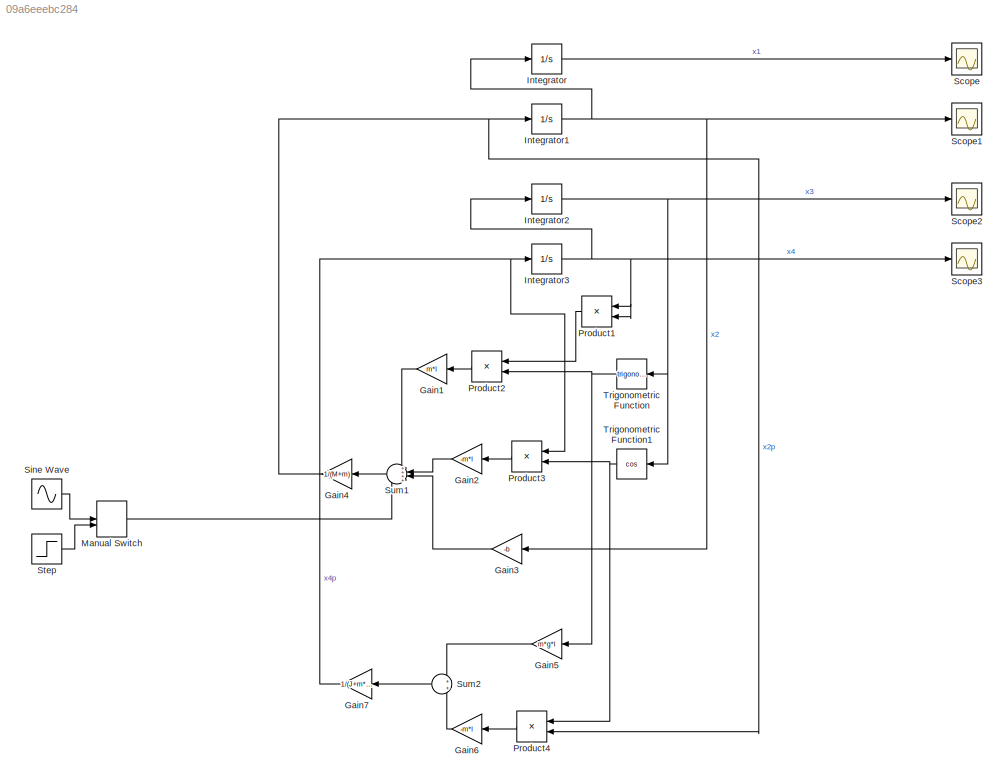
MODEL slx_09a6eeebc284
KIND model
CONFIG AbsTol = auto
CONFIG EnableMultiTasking = off
CONFIG FixedStep = auto
CONFIG MaxStep = auto
CONFIG MinStep = auto
CONFIG RelTol = 1e-3
CONFIG SampleTimeConstraint = Unconstrained
CONFIG SolverName = VariableStepAuto
CONFIG StartTime = 0.0
CONFIG StopTime = 10.0
BLOCK [Gain] Gain1
  Gain = m*l
  NameLocation = top
BLOCK [Gain] Gain2
  Gain = -m*l
  NameLocation = top
BLOCK [Gain] Gain3
  Gain = -b
  NameLocation = top
BLOCK [Gain] Gain4
  Gain = 1/(M+m)
  NameLocation = top
BLOCK [Gain] Gain5
  Gain = m*g*l
  NameLocation = top
BLOCK [Gain] Gain6
  Gain = -m*l
  NameLocation = top
BLOCK [Gain] Gain7
  Gain = 1/(J+m*l*l)
  NameLocation = top
BLOCK [Integrator] Integrator
  NameLocation = top
  Ports = [1, 1]
BLOCK [Integrator] Integrator1
  Ports = [1, 1]
BLOCK [Integrator] Integrator2
  NameLocation = top
  Ports = [1, 1]
BLOCK [Integrator] Integrator3
  Ports = [1, 1]
BLOCK [ManualSwitch] Manual Switch
  CurrentSetting = 0
BLOCK [Product] Product1
  NameLocation = top
  Ports = [2, 1]
BLOCK [Product] Product2
  NameLocation = top
  Ports = [2, 1]
BLOCK [Product] Product3
  NameLocation = top
  Ports = [2, 1]
BLOCK [Product] Product4
  NameLocation = top
  Ports = [2, 1]
BLOCK [Scope] Scope
  Floating = off
  NumInputPorts = 1
  Ports = [1]
  ScopeSpecificationString = Simulink.scopes.TimeScopeBlockCfg('CurrentConfiguration', extmgr.ConfigurationSet(extmgr.Configuration('Core','General UI',true),extmgr.Configuration('Core','Source UI',true),extmgr.Configuration('Sources','WiredSimulink',true),extmgr.Configuration('Visuals','Time Domain',true,'SerializedDisplays',{struct('MinYLimReal','-0.01398','MaxYLimReal','0.12585','YLabelReal','','MinYLimMag','0.00000','MaxY...<+1351ch>
BLOCK [Scope] Scope1
  Floating = off
  NumInputPorts = 1
  Ports = [1]
  ScopeSpecificationString = Simulink.scopes.TimeScopeBlockCfg('CurrentConfiguration', extmgr.ConfigurationSet(extmgr.Configuration('Core','General UI',true),extmgr.Configuration('Core','Source UI',true),extmgr.Configuration('Sources','WiredSimulink',true,'DataLoggingVariableName','ScopeData1'),extmgr.Configuration('Visuals','Time Domain',true,'SerializedDisplays',{struct('MinYLimReal','-0.11552','MaxYLimReal','0.14103','YLab...<+1390ch>
BLOCK [Scope] Scope2
  Floating = off
  NumInputPorts = 1
  Ports = [1]
  ScopeSpecificationString = Simulink.scopes.TimeScopeBlockCfg('CurrentConfiguration', extmgr.ConfigurationSet(extmgr.Configuration('Core','General UI',true),extmgr.Configuration('Core','Source UI',true),extmgr.Configuration('Sources','WiredSimulink',true,'DataLoggingVariableName','ScopeData2'),extmgr.Configuration('Visuals','Time Domain',true,'SerializedDisplays',{struct('MinYLimReal','-6.96245','MaxYLimReal','0.77361','YLab...<+1389ch>
BLOCK [Scope] Scope3
  Floating = off
  NumInputPorts = 1
  Ports = [1]
  ScopeSpecificationString = Simulink.scopes.TimeScopeBlockCfg('CurrentConfiguration', extmgr.ConfigurationSet(extmgr.Configuration('Core','General UI',true),extmgr.Configuration('Core','Source UI',true),extmgr.Configuration('Sources','WiredSimulink',true,'DataLoggingVariableName','ScopeData3'),extmgr.Configuration('Visuals','Time Domain',true,'SerializedDisplays',{struct('MinYLimReal','-10.36369','MaxYLimReal','10.35442','YL...<+1367ch>
BLOCK [Sin] Sine Wave
  Amplitude = 0.1
  Frequency = 2000*pi
  Ports = [0, 1]
  SampleTime = 0
BLOCK [Step] Step
  After = 0.01
  SampleTime = 0
BLOCK [Sum] Sum1
  Inputs = ++++
  NameLocation = top
  Ports = [4, 1]
BLOCK [Sum] Sum2
  NameLocation = top
  Ports = [2, 1]
BLOCK [Trigonometry] Trigonometric Function
  NameLocation = top
  Ports = [1, 1]
BLOCK [Trigonometry] Trigonometric Function1
  NameLocation = top
  Operator = cos
  Ports = [1, 1]
LINE Gain1:1 -> Sum1:1
LINE Gain2:1 -> Sum1:2
LINE Gain3:1 -> Sum1:3
NET Gain4:1 -> Integrator1:1, Product4:2
LINE Gain5:1 -> Sum2:1
LINE Gain6:1 -> Sum2:2
NET Gain7:1 -> Integrator3:1, Product3:1
NET Integrator1:1 -> Gain3:1, Integrator:1, Scope1:1
NET Integrator2:1 -> Scope2:1, Trigonometric Function1:1, Trigonometric Function:1
NET Integrator3:1 -> Integrator2:1, Product1:1, Product1:2, Scope3:1
LINE Integrator:1 -> Scope:1
LINE Manual Switch:1 -> Sum1:4
LINE Product1:1 -> Product2:1
LINE Product2:1 -> Gain1:1
LINE Product3:1 -> Gain2:1
LINE Product4:1 -> Gain6:1
LINE Sine Wave:1 -> Manual Switch:1
LINE Step:1 -> Manual Switch:2
LINE Sum1:1 -> Gain4:1
LINE Sum2:1 -> Gain7:1
NET Trigonometric Function1:1 -> Product3:2, Product4:1
NET Trigonometric Function:1 -> Gain5:1, Product2:2
note: NET lines group one-source signal fan-out (src -> all destinations, sorted); 1:1 wires keep LINE
